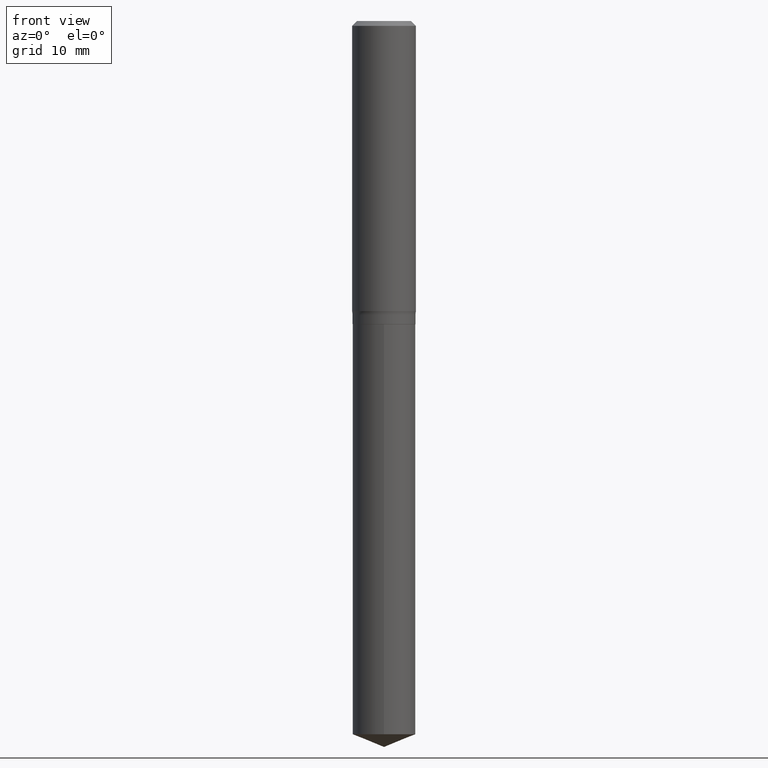
[diagram: clean part render]
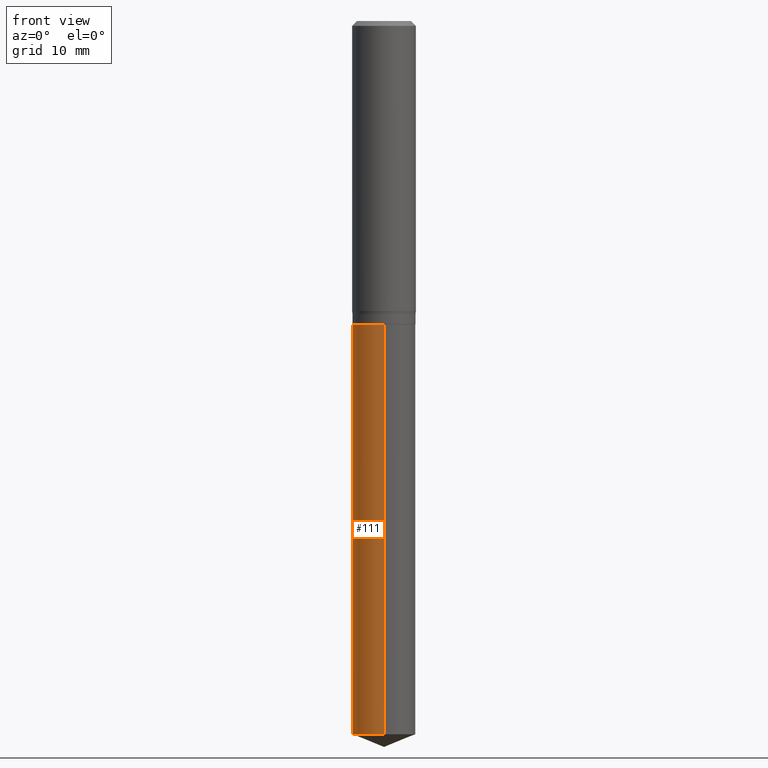
[diagram: same view with one face highlighted and labeled with its STEP entity id]
A machine part, front view. The second image highlights one B-rep face of the part: STEP entity #111.
In plain terms, the highlighted cylindrical surface (edge-blend (fillet) strip) has radius 3.9497 mm, axis along (-0, 0, 1).
Its self-contained STEP definition (entity closure, byte-faithful):
#8 = VERTEX_POINT ( 'NONE', #433 ) ;
#15 = DIRECTION ( 'NONE',  ( -6.982962677686265133E-15, -1.000000000000000000, 3.513630860018345064E-15 ) ) ;
#30 = CARTESIAN_POINT ( 'NONE',  ( 3.659399521575438742E-29, -5.224652675444883351E-15, -1.496400000000000174 ) ) ;
#57 = AXIS2_PLACEMENT_3D ( 'NONE', #58, #166, #15 ) ;
#58 = CARTESIAN_POINT ( 'NONE',  ( 8.608428557293372452E-29, -1.229068880858470422E-14, -3.520173921882633561 ) ) ;
#59 = CARTESIAN_POINT ( 'NONE',  ( -1.085850696380128480E-15, -0.1555000000000123228, -3.520173921882633117 ) ) ;
#71 = AXIS2_PLACEMENT_3D ( 'NONE', #230, #345, #304 ) ;
#86 = EDGE_CURVE ( 'NONE', #194, #184, #294, .T. ) ;
#101 = CARTESIAN_POINT ( 'NONE',  ( -1.085850696380177586E-15, -0.1555000000000052174, -1.496399999999999730 ) ) ;
#106 = DIRECTION ( 'NONE',  ( -6.982962677686265133E-15, -1.000000000000000000, 3.513630860018345064E-15 ) ) ;
#111 = ADVANCED_FACE ( 'NONE', ( #173 ), #142, .T. ) ;
#125 = VECTOR ( 'NONE', #276, 39.37007874015748143 ) ;
#142 = CYLINDRICAL_SURFACE ( 'NONE', #220, 0.1554999999999999993 ) ;
#153 = ORIENTED_EDGE ( 'NONE', *, *, #473, .F. ) ;
#161 = VECTOR ( 'NONE', #467, 39.37007874015748143 ) ;
#166 = DIRECTION ( 'NONE',  ( -2.445445601509706497E-29, 3.491514569259089389E-15, 1.000000000000000000 ) ) ;
#173 = FACE_OUTER_BOUND ( 'NONE', #393, .T. ) ;
#184 = VERTEX_POINT ( 'NONE', #197 ) ;
#188 = EDGE_CURVE ( 'NONE', #8, #194, #489, .T. ) ;
#192 = CARTESIAN_POINT ( 'NONE',  ( 1.104893954106992072E-15, 0.1554999999999947535, -1.496400000000000841 ) ) ;
#194 = VERTEX_POINT ( 'NONE', #59 ) ;
#197 = CARTESIAN_POINT ( 'NONE',  ( -1.085850696380177586E-15, -0.1555000000000052174, -1.496399999999999730 ) ) ;
#199 = ORIENTED_EDGE ( 'NONE', *, *, #86, .T. ) ;
#212 = CARTESIAN_POINT ( 'NONE',  ( 1.104893954107042165E-15, 0.1554999999999947535, -1.496400000000000841 ) ) ;
#220 = AXIS2_PLACEMENT_3D ( 'NONE', #30, #447, #106 ) ;
#230 = CARTESIAN_POINT ( 'NONE',  ( 3.659399521575438742E-29, -5.224652675444883351E-15, -1.496400000000000174 ) ) ;
#276 = DIRECTION ( 'NONE',  ( -2.445445601509706497E-29, 3.491514569259089389E-15, 1.000000000000000000 ) ) ;
#280 = CIRCLE ( 'NONE', #71, 0.1554999999999999993 ) ;
#283 = EDGE_CURVE ( 'NONE', #8, #452, #436, .T. ) ;
#294 = LINE ( 'NONE', #101, #125 ) ;
#304 = DIRECTION ( 'NONE',  ( -6.982962677686265133E-15, -1.000000000000000000, 3.513630860018345064E-15 ) ) ;
#336 = ORIENTED_EDGE ( 'NONE', *, *, #188, .T. ) ;
#345 = DIRECTION ( 'NONE',  ( -2.445445601509706497E-29, 3.491514569259089389E-15, 1.000000000000000000 ) ) ;
#393 = EDGE_LOOP ( 'NONE', ( #455, #336, #199, #153 ) ) ;
#433 = CARTESIAN_POINT ( 'NONE',  ( 1.104893954107041770E-15, 0.1554999999999877591, -3.520173921882634005 ) ) ;
#436 = LINE ( 'NONE', #192, #161 ) ;
#447 = DIRECTION ( 'NONE',  ( -2.445445601509706497E-29, 3.491514569259089389E-15, 1.000000000000000000 ) ) ;
#452 = VERTEX_POINT ( 'NONE', #212 ) ;
#455 = ORIENTED_EDGE ( 'NONE', *, *, #283, .F. ) ;
#467 = DIRECTION ( 'NONE',  ( -2.445445601509706497E-29, 3.491514569259089389E-15, 1.000000000000000000 ) ) ;
#473 = EDGE_CURVE ( 'NONE', #452, #184, #280, .T. ) ;
#489 = CIRCLE ( 'NONE', #57, 0.1554999999999999993 ) ;